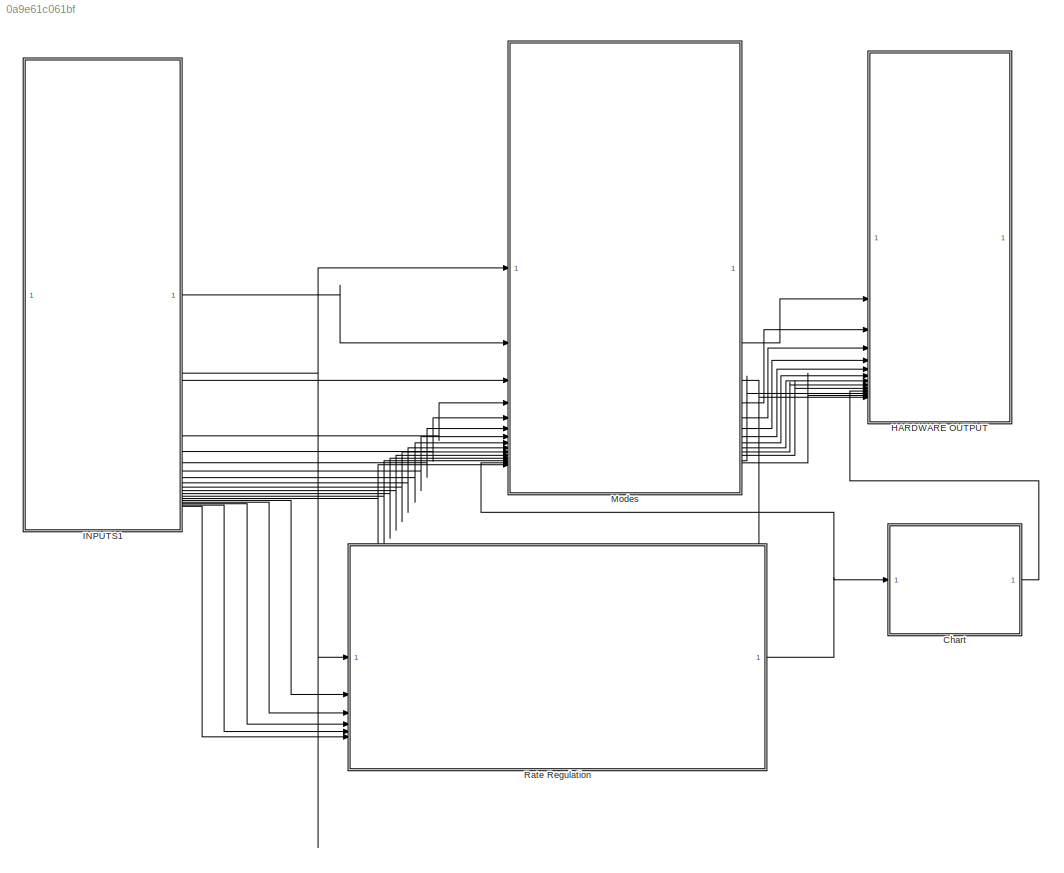
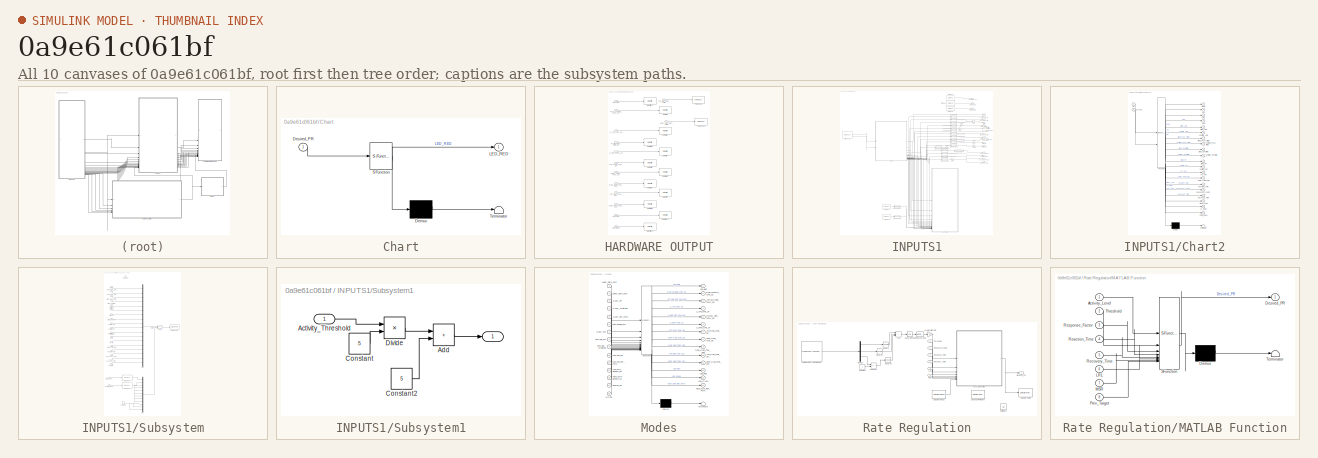
[diagram: thumbnail index - all 10 canvases of the model, root first then tree order]
MODEL slx_0a9e61c061bf
KIND model
CONFIG AbsTol = auto
CONFIG EnableMultiTasking = on
CONFIG FixedStep = 1e-3
CONFIG MaxStep = auto
CONFIG MinStep = auto
CONFIG RelTol = 1e-3
CONFIG SampleTimeConstraint = Unconstrained
CONFIG SolverName = FixedStepAuto
CONFIG StartTime = 0.0
CONFIG StopTime = 10.0
BLOCK [SubSystem] Chart
  ErrorFcn = Stateflow.Translate.translate
  PermitHierarchicalResolution = ExplicitOnly
  SFBlockType = Chart
  TreatAsAtomicUnit = on
BLOCK [Demux] Chart/ Demux 
  Outputs = 1
BLOCK [S-Function] Chart/ SFunction 
  EnableBusSupport = on
  FunctionName = sf_sfun
  PortCounts = [1 2]
  SFcnIsStateOwnerBlock = off
  SFunctionDeploymentMode = off
  Tag = Stateflow S-Function 3
BLOCK [Terminator] Chart/ Terminator 
BLOCK [Inport] Chart/Desired_PR
BLOCK [Outport] Chart/LED_RED
BLOCK [SubSystem] HARDWARE OUTPUT
BLOCK [Inport] HARDWARE OUTPUT/ATR_CMP_REF_PWM
  Port = 14
BLOCK [Inport] HARDWARE OUTPUT/ATR_GND_CTRL_D11
  Port = 9
BLOCK [Inport] HARDWARE OUTPUT/ATR_PACE_CTRL_D8
  Port = 6
BLOCK [Reference] HARDWARE OUTPUT/Digital Write  REF=frdmk64flib/Digital Write
  SourceBlock = frdmk64flib/Digital Write
  SourceType = freedomk64f.DigitalWrite
BLOCK [Reference] HARDWARE OUTPUT/Digital Write10  REF=frdmk64flib/Digital Write
  SourceBlock = frdmk64flib/Digital Write
  SourceType = freedomk64f.DigitalWrite
BLOCK [Reference] HARDWARE OUTPUT/Digital Write11  REF=frdmk64flib/Digital Write
  SourceBlock = frdmk64flib/Digital Write
  SourceType = freedomk64f.DigitalWrite
BLOCK [Reference] HARDWARE OUTPUT/Digital Write12  REF=frdmk64flib/Digital Write
  SourceBlock = frdmk64flib/Digital Write
  SourceType = freedomk64f.DigitalWrite
BLOCK [Reference] HARDWARE OUTPUT/Digital Write2  REF=frdmk64flib/Digital Write
  SourceBlock = frdmk64flib/Digital Write
  SourceType = freedomk64f.DigitalWrite
BLOCK [Reference] HARDWARE OUTPUT/Digital Write3  REF=frdmk64flib/Digital Write
  SourceBlock = frdmk64flib/Digital Write
  SourceType = freedomk64f.DigitalWrite
BLOCK [Reference] HARDWARE OUTPUT/Digital Write4  REF=frdmk64flib/Digital Write
  SourceBlock = frdmk64flib/Digital Write
  SourceType = freedomk64f.DigitalWrite
BLOCK [Reference] HARDWARE OUTPUT/Digital Write5  REF=frdmk64flib/Digital Write
  SourceBlock = frdmk64flib/Digital Write
  SourceType = freedomk64f.DigitalWrite
BLOCK [Reference] HARDWARE OUTPUT/Digital Write6  REF=frdmk64flib/Digital Write
  SourceBlock = frdmk64flib/Digital Write
  SourceType = freedomk64f.DigitalWrite
BLOCK [Reference] HARDWARE OUTPUT/Digital Write7  REF=frdmk64flib/Digital Write
  SourceBlock = frdmk64flib/Digital Write
  SourceType = freedomk64f.DigitalWrite
BLOCK [Reference] HARDWARE OUTPUT/Digital Write8  REF=frdmk64flib/Digital Write
  SourceBlock = frdmk64flib/Digital Write
  SourceType = freedomk64f.DigitalWrite
BLOCK [Reference] HARDWARE OUTPUT/Digital Write9  REF=frdmk64flib/Digital Write
  SourceBlock = frdmk64flib/Digital Write
  SourceType = freedomk64f.DigitalWrite
BLOCK [Inport] HARDWARE OUTPUT/LED_Blue
BLOCK [Inport] HARDWARE OUTPUT/LED_Green
  Port = 12
BLOCK [Inport] HARDWARE OUTPUT/LED_Red
  Port = 11
BLOCK [Inport] HARDWARE OUTPUT/PACE_CHARGE_CTRL_D2
  Port = 2
BLOCK [Inport] HARDWARE OUTPUT/PACE_GND_CTRL_D10
  Port = 8
BLOCK [Inport] HARDWARE OUTPUT/PACING_REF_PWM_D5
  Port = 4
BLOCK [Reference] HARDWARE OUTPUT/PWM Output1  REF=frdmk64flib/PWM Output
  SourceBlock = frdmk64flib/PWM Output
  SourceType = freedomk64f.PWMOutput
BLOCK [Reference] HARDWARE OUTPUT/PWM Output2  REF=frdmk64flib/PWM Output
  SourceBlock = frdmk64flib/PWM Output
  SourceType = freedomk64f.PWMOutput
BLOCK [Inport] HARDWARE OUTPUT/VENT_CMP_REF_PWM
  Port = 13
BLOCK [Inport] HARDWARE OUTPUT/VENT_GND_CTRL_D12
  Port = 10
BLOCK [Inport] HARDWARE OUTPUT/VENT_PACE_CTRL_D9
  Port = 7
BLOCK [Inport] HARDWARE OUTPUT/Z_ATR_CTRL_D4
  Port = 3
BLOCK [Inport] HARDWARE OUTPUT/Z_VENT_CTRL_D7
  Port = 5
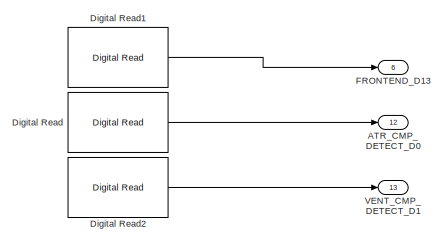
[diagram: INPUTS1 - part 1/4, top right region]
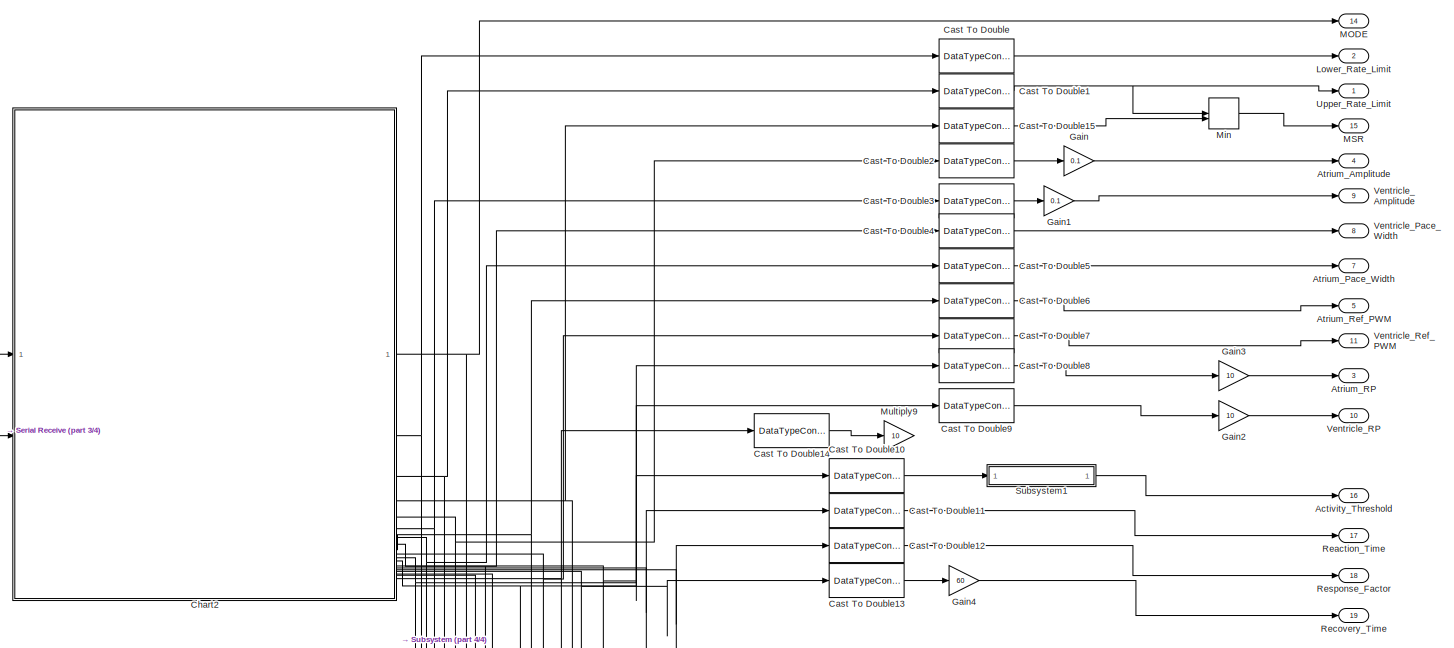
[diagram: INPUTS1 - part 2/4, full width, top band]
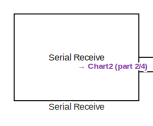
[diagram: INPUTS1 - part 3/4, top left region]
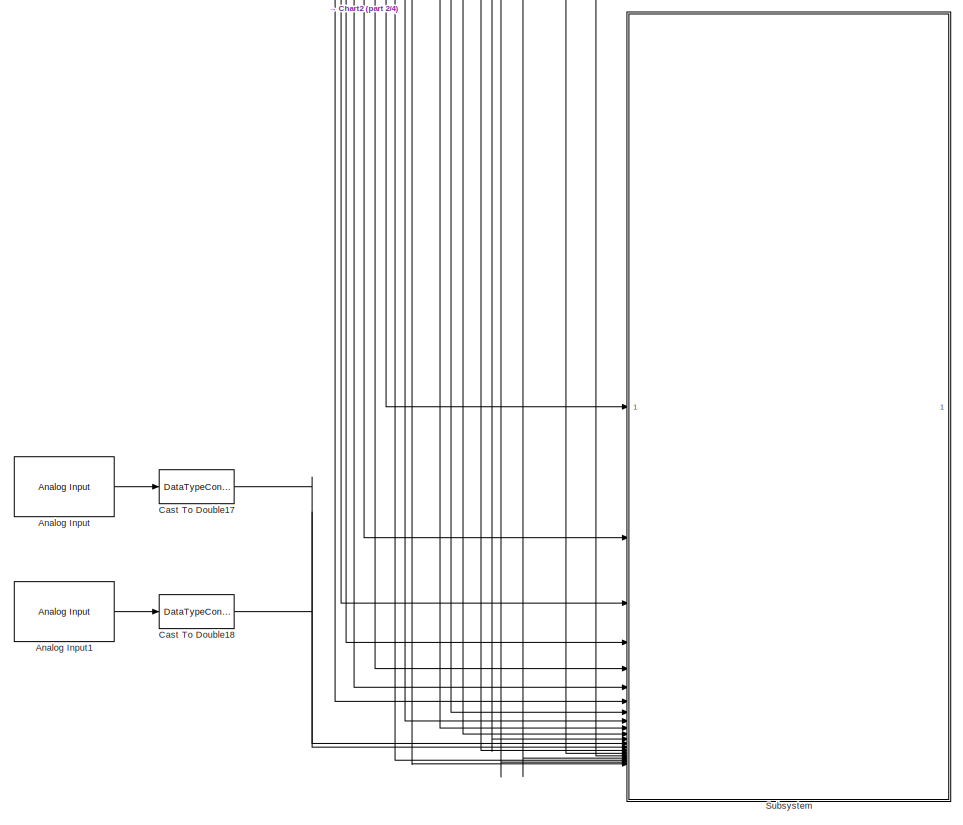
[diagram: INPUTS1 - part 4/4, bottom center region]
BLOCK [SubSystem] INPUTS1
BLOCK [Outport] INPUTS1/ MODE
  Port = 14
BLOCK [Outport] INPUTS1/ATR_CMP_DETECT_D0
  Port = 12
BLOCK [Outport] INPUTS1/Activity_Threshold
  Port = 16
BLOCK [Reference] INPUTS1/Analog Input  REF=frdmk64flib/Analog Input
  SourceBlock = frdmk64flib/Analog Input
  SourceType = freedomk64f.AnalogInput
BLOCK [Reference] INPUTS1/Analog Input1  REF=frdmk64flib/Analog Input
  SourceBlock = frdmk64flib/Analog Input
  SourceType = freedomk64f.AnalogInput
BLOCK [Outport] INPUTS1/Atrium_Amplitude
  Port = 4
BLOCK [Outport] INPUTS1/Atrium_Pace_Width
  Port = 7
BLOCK [Outport] INPUTS1/Atrium_RP
  Port = 3
BLOCK [Outport] INPUTS1/Atrium_Ref_PWM
  Port = 5
BLOCK [DataTypeConversion] INPUTS1/Cast To Double
  OutDataTypeStr = double
  RndMeth = Floor
  SaturateOnIntegerOverflow = off
BLOCK [DataTypeConversion] INPUTS1/Cast To Double1
  OutDataTypeStr = double
  RndMeth = Floor
  SaturateOnIntegerOverflow = off
BLOCK [DataTypeConversion] INPUTS1/Cast To Double10
  OutDataTypeStr = double
  RndMeth = Floor
  SaturateOnIntegerOverflow = off
BLOCK [DataTypeConversion] INPUTS1/Cast To Double11
  OutDataTypeStr = double
  RndMeth = Floor
  SaturateOnIntegerOverflow = off
BLOCK [DataTypeConversion] INPUTS1/Cast To Double12
  OutDataTypeStr = double
  RndMeth = Floor
  SaturateOnIntegerOverflow = off
BLOCK [DataTypeConversion] INPUTS1/Cast To Double13
  OutDataTypeStr = double
  RndMeth = Floor
  SaturateOnIntegerOverflow = off
BLOCK [DataTypeConversion] INPUTS1/Cast To Double14
  OutDataTypeStr = double
  RndMeth = Floor
  SaturateOnIntegerOverflow = off
BLOCK [DataTypeConversion] INPUTS1/Cast To Double15
  OutDataTypeStr = double
  RndMeth = Floor
  SaturateOnIntegerOverflow = off
BLOCK [DataTypeConversion] INPUTS1/Cast To Double17
  OutDataTypeStr = single
  RndMeth = Floor
  SaturateOnIntegerOverflow = off
BLOCK [DataTypeConversion] INPUTS1/Cast To Double18
  OutDataTypeStr = single
  RndMeth = Floor
  SaturateOnIntegerOverflow = off
BLOCK [DataTypeConversion] INPUTS1/Cast To Double2
  OutDataTypeStr = double
  RndMeth = Floor
  SaturateOnIntegerOverflow = off
BLOCK [DataTypeConversion] INPUTS1/Cast To Double3
  OutDataTypeStr = double
  RndMeth = Floor
  SaturateOnIntegerOverflow = off
BLOCK [DataTypeConversion] INPUTS1/Cast To Double4
  OutDataTypeStr = double
  RndMeth = Floor
  SaturateOnIntegerOverflow = off
BLOCK [DataTypeConversion] INPUTS1/Cast To Double5
  OutDataTypeStr = double
  RndMeth = Floor
  SaturateOnIntegerOverflow = off
BLOCK [DataTypeConversion] INPUTS1/Cast To Double6
  OutDataTypeStr = double
  RndMeth = Floor
  SaturateOnIntegerOverflow = off
BLOCK [DataTypeConversion] INPUTS1/Cast To Double7
  OutDataTypeStr = double
  RndMeth = Floor
  SaturateOnIntegerOverflow = off
BLOCK [DataTypeConversion] INPUTS1/Cast To Double8
  OutDataTypeStr = double
  RndMeth = Floor
  SaturateOnIntegerOverflow = off
BLOCK [DataTypeConversion] INPUTS1/Cast To Double9
  OutDataTypeStr = double
  RndMeth = Floor
  SaturateOnIntegerOverflow = off
BLOCK [SubSystem] INPUTS1/Chart2
  ErrorFcn = Stateflow.Translate.translate
  PermitHierarchicalResolution = ExplicitOnly
  PortSchema = {"entries":[{"content":{"sides":[{"content":{"connectorIds":["In1","In2"]},"type":"ConnectorPlacement.EquallySpacedRectSide","uuid":"ffb3d753-dbd9-4cc9-b3f6-be85e99fedf4"},{"content":{"connectorIds":["Out1","Out2","Out3","Out4","Out5","Out6","Out7","Out8","Out9","Out10","Out11","Out12","Out13","Out14","Out15","Out16","Out17","Out20","Out19","Out18"],"side":"RIGHT"},"type":"ConnectorPlacement.Equal...<+372ch>
  SFBlockType = Chart
  TreatAsAtomicUnit = on
BLOCK [Demux] INPUTS1/Chart2/ Demux 
  Outputs = 1
BLOCK [S-Function] INPUTS1/Chart2/ SFunction 
  EnableBusSupport = on
  FunctionName = sf_sfun
  PortCounts = [2 21]
  SFcnIsStateOwnerBlock = off
  SFunctionDeploymentMode = off
  Tag = Stateflow S-Function 4
BLOCK [Terminator] INPUTS1/Chart2/ Terminator 
BLOCK [Outport] INPUTS1/Chart2/AV_Delay
  Port = 19
BLOCK [Outport] INPUTS1/Chart2/Activity_Threshold
  Port = 14
BLOCK [Outport] INPUTS1/Chart2/Atrium_Amp
  Port = 5
BLOCK [Outport] INPUTS1/Chart2/Atrium_Pace_Width
  Port = 7
BLOCK [Outport] INPUTS1/Chart2/Atrium_RP
  Port = 11
BLOCK [Outport] INPUTS1/Chart2/Atrium_Sensitivity
  Port = 9
BLOCK [Outport] INPUTS1/Chart2/COM_SWAP
  Port = 20
BLOCK [Outport] INPUTS1/Chart2/Green_LED
  Port = 18
BLOCK [Outport] INPUTS1/Chart2/LRL
  Port = 2
BLOCK [Outport] INPUTS1/Chart2/MSR
  Port = 4
BLOCK [Outport] INPUTS1/Chart2/Mode
BLOCK [Outport] INPUTS1/Chart2/PV_ARP
  Port = 13
BLOCK [Inport] INPUTS1/Chart2/RX
BLOCK [Outport] INPUTS1/Chart2/Reaction_Time
  Port = 15
BLOCK [Outport] INPUTS1/Chart2/Recovery_Time
  Port = 17
BLOCK [Outport] INPUTS1/Chart2/Response_Factor
  Port = 16
BLOCK [Inport] INPUTS1/Chart2/STATUS
  Port = 2
BLOCK [Outport] INPUTS1/Chart2/URL
  Port = 3
BLOCK [Outport] INPUTS1/Chart2/Ventricle_Amp
  Port = 6
BLOCK [Outport] INPUTS1/Chart2/Ventricle_Pace_Width
  Port = 8
BLOCK [Outport] INPUTS1/Chart2/Ventricle_RP
  Port = 12
BLOCK [Outport] INPUTS1/Chart2/Ventricle_Sensitivity
  Port = 10
BLOCK [Reference] INPUTS1/Digital Read  REF=frdmk64flib/Digital Read
  SourceBlock = frdmk64flib/Digital Read
  SourceType = freedomk64f.DigitalRead
BLOCK [Reference] INPUTS1/Digital Read1  REF=frdmk64flib/Digital Read
  SourceBlock = frdmk64flib/Digital Read
  SourceType = freedomk64f.DigitalRead
BLOCK [Reference] INPUTS1/Digital Read2  REF=frdmk64flib/Digital Read
  SourceBlock = frdmk64flib/Digital Read
  SourceType = freedomk64f.DigitalRead
BLOCK [Outport] INPUTS1/FRONTEND_D13
  Port = 6
BLOCK [Gain] INPUTS1/Gain
  Gain = 0.1
BLOCK [Gain] INPUTS1/Gain1
  Gain = 0.1
BLOCK [Gain] INPUTS1/Gain2
  Gain = 10
BLOCK [Gain] INPUTS1/Gain3
  Gain = 10
BLOCK [Gain] INPUTS1/Gain4
  Gain = 60
BLOCK [Outport] INPUTS1/Lower_Rate_Limit
  Port = 2
BLOCK [Outport] INPUTS1/MSR
  Port = 15
BLOCK [MinMax] INPUTS1/Min
  Inputs = 2
BLOCK [Gain] INPUTS1/Multiply9
  Gain = 10
BLOCK [Outport] INPUTS1/Reaction_Time
  Port = 17
BLOCK [Outport] INPUTS1/Recovery_Time
  Port = 19
BLOCK [Outport] INPUTS1/Response_Factor
  Port = 18
BLOCK [Reference] INPUTS1/Serial Receive  REF=frdmk64flib/Serial Receive
  SourceBlock = frdmk64flib/Serial Receive
  SourceType = freedomk64f.SCIRead
BLOCK [SubSystem] INPUTS1/Subsystem
BLOCK [Inport] INPUTS1/Subsystem/AV_Delay
  Port = 21
BLOCK [Inport] INPUTS1/Subsystem/Activity_Threshold
  Port = 18
BLOCK [Inport] INPUTS1/Subsystem/Atrium_Amplitude
  Port = 5
BLOCK [Inport] INPUTS1/Subsystem/Atrium_Pace_Width
  Port = 4
BLOCK [Inport] INPUTS1/Subsystem/Atrium_RP
  Port = 7
BLOCK [Inport] INPUTS1/Subsystem/Atrium_Ref_PWM
  Port = 8
BLOCK [Inport] INPUTS1/Subsystem/Atrium_Signal
  Port = 13
BLOCK [Reference] INPUTS1/Subsystem/Byte Pack  REF=etargetslib/Byte Pack
  LibrarySourceBlock = embeddedtargetslib/Host Communication/Byte Pack
  SourceBlock = etargetslib/Byte Pack
  SourceType = Byte pack
BLOCK [Reference] INPUTS1/Subsystem/Byte Pack1  REF=etargetslib/Byte Pack
  LibrarySourceBlock = embeddedtargetslib/Host Communication/Byte Pack
  SourceBlock = etargetslib/Byte Pack
  SourceType = Byte pack
BLOCK [Inport] INPUTS1/Subsystem/COM
  Port = 19
BLOCK [Constant] INPUTS1/Subsystem/Constant
  OutDataTypeStr = uint8
  Value = 0
BLOCK [TriggerPort] INPUTS1/Subsystem/DCM_out
  FunctionName = DCM_out
  IsSimulinkFunction = on
  StatesWhenEnabling = held
  TriggerType = function-call
  VariantControl = (inherit)
BLOCK [Inport] INPUTS1/Subsystem/Lower_Rate_Limit
  Port = 3
BLOCK [Inport] INPUTS1/Subsystem/MSR
  Port = 12
BLOCK [Inport] INPUTS1/Subsystem/Mode
BLOCK [Mux] INPUTS1/Subsystem/Mux
  DisplayOption = bar
  Inputs = 18
  NameLocation = left
BLOCK [Mux] INPUTS1/Subsystem/Mux1
  DisplayOption = bar
  Inputs = 12
BLOCK [Inport] INPUTS1/Subsystem/PVARP
  Port = 15
BLOCK [Inport] INPUTS1/Subsystem/Reaction_Time
  Port = 16
BLOCK [Inport] INPUTS1/Subsystem/Recovery_Time
  Port = 20
BLOCK [Inport] INPUTS1/Subsystem/Response_Factor
  Port = 17
BLOCK [Reference] INPUTS1/Subsystem/Serial Transmit  REF=frdmk64flib/Serial Transmit
  SourceBlock = frdmk64flib/Serial Transmit
  SourceType = freedomk64f.SCIWrite
BLOCK [Switch] INPUTS1/Subsystem/Switch
  Criteria = u2 ~= 0
  InputSameDT = off
  SaturateOnIntegerOverflow = off
BLOCK [Inport] INPUTS1/Subsystem/Upper_Rate_Limit
  Port = 2
BLOCK [Inport] INPUTS1/Subsystem/Ventricle_Amplitude
  Port = 6
BLOCK [Inport] INPUTS1/Subsystem/Ventricle_PW
  Port = 9
BLOCK [Inport] INPUTS1/Subsystem/Ventricle_RP
  Port = 10
BLOCK [Inport] INPUTS1/Subsystem/Ventricle_Ref_PWM
  Port = 11
BLOCK [Inport] INPUTS1/Subsystem/Ventricle_Signal
  Port = 14
BLOCK [SubSystem] INPUTS1/Subsystem1
BLOCK [Outport] INPUTS1/Subsystem1/ 
BLOCK [Inport] INPUTS1/Subsystem1/Activity_Threshold
BLOCK [Sum] INPUTS1/Subsystem1/Add
  IconShape = rectangular
BLOCK [Constant] INPUTS1/Subsystem1/Constant
  Value = 5
BLOCK [Constant] INPUTS1/Subsystem1/Constant2
  Value = 5
BLOCK [Product] INPUTS1/Subsystem1/Divide
  Inputs = **
BLOCK [Outport] INPUTS1/Upper_Rate_Limit
BLOCK [Outport] INPUTS1/VENT_CMP_DETECT_D1
  Port = 13
BLOCK [Outport] INPUTS1/Ventricle_Amplitude
  Port = 9
BLOCK [Outport] INPUTS1/Ventricle_Pace_Width
  Port = 8
BLOCK [Outport] INPUTS1/Ventricle_RP
  Port = 10
BLOCK [Outport] INPUTS1/Ventricle_Ref_PWM
  Port = 11
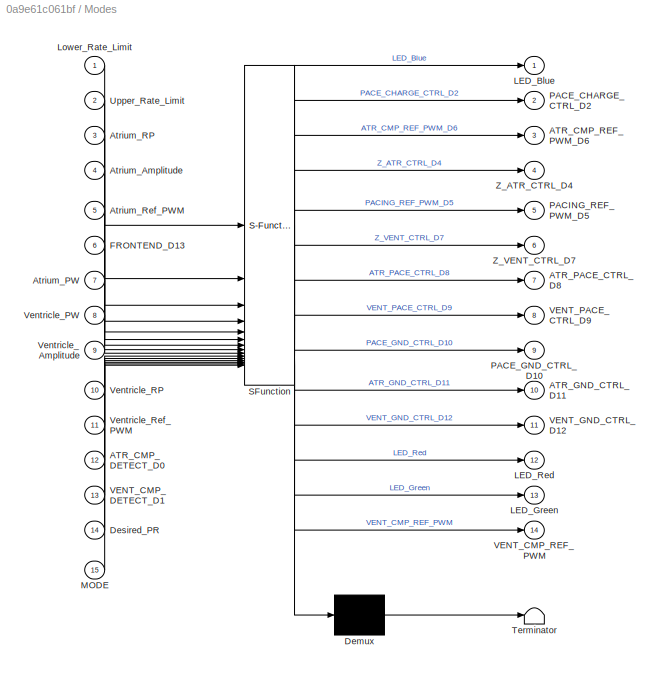
BLOCK [SubSystem] Modes
  ErrorFcn = Stateflow.Translate.translate
  PermitHierarchicalResolution = ExplicitOnly
  PortSchema = {"entries":[{"content":{"sides":[{"content":{"connectorIds":["In2","In1","In3","In4","In5","In6","In7","In8","In9","In10","In11","In12","In13","In15","In14"]},"type":"ConnectorPlacement.EquallySpacedRectSide","uuid":"de1b8d47-cd87-47e9-9fda-ef3b527fe860"},{"content":{"connectorIds":["Out1","Out2","Out3","Out4","Out5","Out6","Out7","Out8","Out9","Out10","Out11","Out12","Out13","Out14"],"side":"RIGH...<+408ch>
  SFBlockType = Chart
  TreatAsAtomicUnit = on
BLOCK [Demux] Modes/ Demux 
  Outputs = 1
BLOCK [S-Function] Modes/ SFunction 
  EnableBusSupport = on
  FunctionName = sf_sfun
  PortCounts = [15 15]
  SFcnIsStateOwnerBlock = off
  SFunctionDeploymentMode = off
  Tag = Stateflow S-Function 2
BLOCK [Terminator] Modes/ Terminator 
BLOCK [Inport] Modes/ATR_CMP_DETECT_D0
  Port = 12
BLOCK [Outport] Modes/ATR_CMP_REF_PWM_D6
  Port = 3
BLOCK [Outport] Modes/ATR_GND_CTRL_D11
  Port = 10
BLOCK [Outport] Modes/ATR_PACE_CTRL_D8
  Port = 7
BLOCK [Inport] Modes/Atrium_Amplitude
  Port = 4
BLOCK [Inport] Modes/Atrium_PW
  Port = 7
BLOCK [Inport] Modes/Atrium_RP
  Port = 3
BLOCK [Inport] Modes/Atrium_Ref_PWM
  Port = 5
BLOCK [Inport] Modes/Desired_PR
  Port = 14
BLOCK [Inport] Modes/FRONTEND_D13
  Port = 6
BLOCK [Outport] Modes/LED_Blue
BLOCK [Outport] Modes/LED_Green
  Port = 13
BLOCK [Outport] Modes/LED_Red
  Port = 12
BLOCK [Inport] Modes/Lower_Rate_Limit
BLOCK [Inport] Modes/MODE
  Port = 15
BLOCK [Outport] Modes/PACE_CHARGE_CTRL_D2
  Port = 2
BLOCK [Outport] Modes/PACE_GND_CTRL_D10
  Port = 9
BLOCK [Outport] Modes/PACING_REF_PWM_D5
  Port = 5
BLOCK [Inport] Modes/Upper_Rate_Limit
  Port = 2
BLOCK [Inport] Modes/VENT_CMP_DETECT_D1
  Port = 13
BLOCK [Outport] Modes/VENT_CMP_REF_PWM
  Port = 14
BLOCK [Outport] Modes/VENT_GND_CTRL_D12
  Port = 11
BLOCK [Outport] Modes/VENT_PACE_CTRL_D9
  Port = 8
BLOCK [Inport] Modes/Ventricle_Amplitude
  Port = 9
BLOCK [Inport] Modes/Ventricle_PW
  Port = 8
BLOCK [Inport] Modes/Ventricle_RP
  Port = 10
BLOCK [Inport] Modes/Ventricle_Ref_PWM
  Port = 11
BLOCK [Outport] Modes/Z_ATR_CTRL_D4
  Port = 4
BLOCK [Outport] Modes/Z_VENT_CTRL_D7
  Port = 6
BLOCK [SubSystem] Rate Regulation
BLOCK [Gain] Rate Regulation/Acceleration Amp
  Gain = 25
BLOCK [Sum] Rate Regulation/Add
  IconShape = rectangular
  Inputs = +++
BLOCK [Constant] Rate Regulation/Constant
BLOCK [DataStoreRead] Rate Regulation/Data Store Read
  DataStoreElements = Prev_Target
  DataStoreName = Prev_Target
  IndexOptions = Index vector (dialog)
  Indices = 1
  OutputSizes = 1
BLOCK [DataStoreWrite] Rate Regulation/Data Store Write
  DataStoreElements = Prev_Target
  DataStoreName = Prev_Target
  IndexOptions = Index vector (dialog)
  Indices = 1
  OutputSizes = 1
BLOCK [Demux] Rate Regulation/Demux
  Outputs = 3
BLOCK [DataStoreMemory] Rate Regulation/Desired PR Memory
  DataStoreName = Prev_Target
  ShowAdditionalParam = off
  WriteAfterWriteMsg = warning
BLOCK [Outport] Rate Regulation/Desired_PR
  OutDataTypeStr = double
BLOCK [Reference] Rate Regulation/FXOS8700 6-Axes Sensor  REF=frdmk64flib/FXOS8700 6-Axes Sensor
  SourceBlock = frdmk64flib/FXOS8700 6-Axes Sensor
  SourceType = freedomk64f.fxos8700
BLOCK [Inport] Rate Regulation/LRL
  OutDataTypeStr = double
BLOCK [SubSystem] Rate Regulation/MATLAB Function
  ErrorFcn = Stateflow.Translate.translate
  PermitHierarchicalResolution = ExplicitOnly
  SFBlockType = MATLAB Function
  TreatAsAtomicUnit = on
BLOCK [Demux] Rate Regulation/MATLAB Function/ Demux 
  Outputs = 1
BLOCK [S-Function] Rate Regulation/MATLAB Function/ SFunction 
  EnableBusSupport = on
  FunctionName = sf_sfun
  PortCounts = [8 2]
  SFcnIsStateOwnerBlock = off
  SFunctionDeploymentMode = off
  Tag = Stateflow S-Function 1
BLOCK [Terminator] Rate Regulation/MATLAB Function/ Terminator 
BLOCK [Inport] Rate Regulation/MATLAB Function/Activity_Level
BLOCK [Outport] Rate Regulation/MATLAB Function/Desired_PR
BLOCK [Inport] Rate Regulation/MATLAB Function/LRL
  Port = 6
BLOCK [Inport] Rate Regulation/MATLAB Function/MSR
  Port = 7
BLOCK [Inport] Rate Regulation/MATLAB Function/Prev_Target
  Port = 8
BLOCK [Inport] Rate Regulation/MATLAB Function/Reaction_Time
  Port = 4
BLOCK [Inport] Rate Regulation/MATLAB Function/Recovery_Time
  Port = 5
BLOCK [Inport] Rate Regulation/MATLAB Function/Response_Factor
  Port = 3
BLOCK [Inport] Rate Regulation/MATLAB Function/Threshold
  Port = 2
BLOCK [Inport] Rate Regulation/MSR
  OutDataTypeStr = double
  Port = 2
BLOCK [Reference] Rate Regulation/Moving Average  REF=dspstat3/Moving
Average
  SourceBlock = dspstat3/Moving\nAverage
  SourceType = dsp.simulink.MovingAverage
BLOCK [Inport] Rate Regulation/Recovery_Time
  OutDataTypeStr = double
  Port = 6
BLOCK [Inport] Rate Regulation/Response_Factor
  OutDataTypeStr = double
  Port = 5
BLOCK [Inport] Rate Regulation/Response_Time
  OutDataTypeStr = double
  Port = 4
BLOCK [Math] Rate Regulation/Square
  Operator = square
BLOCK [Sqrt] Rate Regulation/Square Root
BLOCK [Math] Rate Regulation/Square1
  Operator = square
BLOCK [Math] Rate Regulation/Square2
  Operator = square
BLOCK [Sum] Rate Regulation/Subtract1
  IconShape = rectangular
  Inputs = +-
BLOCK [Inport] Rate Regulation/Threshold
  OutDataTypeStr = double
  Port = 3
BLOCK [UnitDelay] Rate Regulation/Unit Delay1
  HasFrameUpgradeWarning = on
  NameLocation = right
  SampleTime = -1
LINE Chart:1 -> HARDWARE OUTPUT:11
LINE HARDWARE OUTPUT/ATR_CMP_REF_PWM:1 -> HARDWARE OUTPUT/PWM Output2:1
LINE HARDWARE OUTPUT/ATR_GND_CTRL_D11:1 -> HARDWARE OUTPUT/Digital Write8:1
LINE HARDWARE OUTPUT/ATR_PACE_CTRL_D8:1 -> HARDWARE OUTPUT/Digital Write5:1
LINE HARDWARE OUTPUT/LED_Blue:1 -> HARDWARE OUTPUT/Digital Write10:1
LINE HARDWARE OUTPUT/LED_Green:1 -> HARDWARE OUTPUT/Digital Write12:1
LINE HARDWARE OUTPUT/LED_Red:1 -> HARDWARE OUTPUT/Digital Write11:1
LINE HARDWARE OUTPUT/PACE_CHARGE_CTRL_D2:1 -> HARDWARE OUTPUT/Digital Write:1
LINE HARDWARE OUTPUT/PACE_GND_CTRL_D10:1 -> HARDWARE OUTPUT/Digital Write7:1
LINE HARDWARE OUTPUT/PACING_REF_PWM_D5:1 -> HARDWARE OUTPUT/Digital Write3:1
LINE HARDWARE OUTPUT/VENT_CMP_REF_PWM:1 -> HARDWARE OUTPUT/PWM Output1:1
LINE HARDWARE OUTPUT/VENT_GND_CTRL_D12:1 -> HARDWARE OUTPUT/Digital Write9:1
LINE HARDWARE OUTPUT/VENT_PACE_CTRL_D9:1 -> HARDWARE OUTPUT/Digital Write6:1
LINE HARDWARE OUTPUT/Z_ATR_CTRL_D4:1 -> HARDWARE OUTPUT/Digital Write2:1
LINE HARDWARE OUTPUT/Z_VENT_CTRL_D7:1 -> HARDWARE OUTPUT/Digital Write4:1
LINE INPUTS1/Analog Input1:1 -> INPUTS1/Cast To Double18:1
LINE INPUTS1/Analog Input:1 -> INPUTS1/Cast To Double17:1
LINE INPUTS1/Cast To Double10:1 -> INPUTS1/Subsystem1:1
LINE INPUTS1/Cast To Double11:1 -> INPUTS1/Reaction_Time:1
LINE INPUTS1/Cast To Double12:1 -> INPUTS1/Response_Factor:1
LINE INPUTS1/Cast To Double13:1 -> INPUTS1/Gain4:1
LINE INPUTS1/Cast To Double14:1 -> INPUTS1/Multiply9:1
LINE INPUTS1/Cast To Double15:1 -> INPUTS1/Min:2
LINE INPUTS1/Cast To Double17:1 -> INPUTS1/Subsystem:13
LINE INPUTS1/Cast To Double18:1 -> INPUTS1/Subsystem:14
NET INPUTS1/Cast To Double1:1 -> INPUTS1/Min:1, INPUTS1/Upper_Rate_Limit:1
LINE INPUTS1/Cast To Double2:1 -> INPUTS1/Gain:1
LINE INPUTS1/Cast To Double3:1 -> INPUTS1/Gain1:1
LINE INPUTS1/Cast To Double4:1 -> INPUTS1/Ventricle_Pace_Width:1
LINE INPUTS1/Cast To Double5:1 -> INPUTS1/Atrium_Pace_Width:1
LINE INPUTS1/Cast To Double6:1 -> INPUTS1/Atrium_Ref_PWM:1
LINE INPUTS1/Cast To Double7:1 -> INPUTS1/Ventricle_Ref_PWM:1
LINE INPUTS1/Cast To Double8:1 -> INPUTS1/Gain3:1
LINE INPUTS1/Cast To Double9:1 -> INPUTS1/Gain2:1
LINE INPUTS1/Cast To Double:1 -> INPUTS1/Lower_Rate_Limit:1
NET INPUTS1/Chart2:1 -> INPUTS1/ MODE:1, INPUTS1/Subsystem:1
NET INPUTS1/Chart2:10 -> INPUTS1/Cast To Double7:1, INPUTS1/Subsystem:11
NET INPUTS1/Chart2:11 -> INPUTS1/Cast To Double8:1, INPUTS1/Subsystem:7
NET INPUTS1/Chart2:12 -> INPUTS1/Cast To Double9:1, INPUTS1/Subsystem:10
NET INPUTS1/Chart2:13 -> INPUTS1/Cast To Double14:1, INPUTS1/Subsystem:15
NET INPUTS1/Chart2:14 -> INPUTS1/Cast To Double10:1, INPUTS1/Subsystem:18
NET INPUTS1/Chart2:15 -> INPUTS1/Cast To Double11:1, INPUTS1/Subsystem:16
NET INPUTS1/Chart2:16 -> INPUTS1/Cast To Double12:1, INPUTS1/Subsystem:17
NET INPUTS1/Chart2:17 -> INPUTS1/Cast To Double13:1, INPUTS1/Subsystem:20
LINE INPUTS1/Chart2:19 -> INPUTS1/Subsystem:21
NET INPUTS1/Chart2:2 -> INPUTS1/Cast To Double:1, INPUTS1/Subsystem:3
LINE INPUTS1/Chart2:20 -> INPUTS1/Subsystem:19
NET INPUTS1/Chart2:3 -> INPUTS1/Cast To Double1:1, INPUTS1/Subsystem:2
NET INPUTS1/Chart2:4 -> INPUTS1/Cast To Double15:1, INPUTS1/Subsystem:12
NET INPUTS1/Chart2:5 -> INPUTS1/Cast To Double2:1, INPUTS1/Subsystem:5
NET INPUTS1/Chart2:6 -> INPUTS1/Cast To Double3:1, INPUTS1/Subsystem:6
NET INPUTS1/Chart2:7 -> INPUTS1/Cast To Double5:1, INPUTS1/Subsystem:4
NET INPUTS1/Chart2:8 -> INPUTS1/Cast To Double4:1, INPUTS1/Subsystem:9
NET INPUTS1/Chart2:9 -> INPUTS1/Cast To Double6:1, INPUTS1/Subsystem:8
LINE INPUTS1/Digital Read1:1 -> INPUTS1/FRONTEND_D13:1
LINE INPUTS1/Digital Read2:1 -> INPUTS1/VENT_CMP_DETECT_D1:1
LINE INPUTS1/Digital Read:1 -> INPUTS1/ATR_CMP_DETECT_D0:1
LINE INPUTS1/Gain1:1 -> INPUTS1/Ventricle_Amplitude:1
LINE INPUTS1/Gain2:1 -> INPUTS1/Ventricle_RP:1
LINE INPUTS1/Gain3:1 -> INPUTS1/Atrium_RP:1
LINE INPUTS1/Gain4:1 -> INPUTS1/Recovery_Time:1
LINE INPUTS1/Gain:1 -> INPUTS1/Atrium_Amplitude:1
LINE INPUTS1/Min:1 -> INPUTS1/MSR:1
LINE INPUTS1/Serial Receive:1 -> INPUTS1/Chart2:1
LINE INPUTS1/Serial Receive:2 -> INPUTS1/Chart2:2
LINE INPUTS1/Subsystem/AV_Delay:1 -> INPUTS1/Subsystem/Mux:18
LINE INPUTS1/Subsystem/Activity_Threshold:1 -> INPUTS1/Subsystem/Mux:14
LINE INPUTS1/Subsystem/Atrium_Amplitude:1 -> INPUTS1/Subsystem/Mux:5
LINE INPUTS1/Subsystem/Atrium_Pace_Width:1 -> INPUTS1/Subsystem/Mux:4
LINE INPUTS1/Subsystem/Atrium_RP:1 -> INPUTS1/Subsystem/Mux:7
LINE INPUTS1/Subsystem/Atrium_Ref_PWM:1 -> INPUTS1/Subsystem/Mux:8
LINE INPUTS1/Subsystem/Atrium_Signal:1 -> INPUTS1/Subsystem/Byte Pack:1
LINE INPUTS1/Subsystem/Byte Pack1:1 -> INPUTS1/Subsystem/Mux1:2
LINE INPUTS1/Subsystem/Byte Pack:1 -> INPUTS1/Subsystem/Mux1:1
LINE INPUTS1/Subsystem/COM:1 -> INPUTS1/Subsystem/Switch:2
NET INPUTS1/Subsystem/Constant:1 -> INPUTS1/Subsystem/Mux1:10, INPUTS1/Subsystem/Mux1:11, INPUTS1/Subsystem/Mux1:12, INPUTS1/Subsystem/Mux1:3, INPUTS1/Subsystem/Mux1:4, INPUTS1/Subsystem/Mux1:5, INPUTS1/Subsystem/Mux1:6, INPUTS1/Subsystem/Mux1:7, INPUTS1/Subsystem/Mux1:8, INPUTS1/Subsystem/Mux1:9
LINE INPUTS1/Subsystem/Lower_Rate_Limit:1 -> INPUTS1/Subsystem/Mux:3
LINE INPUTS1/Subsystem/MSR:1 -> INPUTS1/Subsystem/Mux:12
LINE INPUTS1/Subsystem/Mode:1 -> INPUTS1/Subsystem/Mux:1
LINE INPUTS1/Subsystem/Mux1:1 -> INPUTS1/Subsystem/Switch:3
LINE INPUTS1/Subsystem/Mux:1 -> INPUTS1/Subsystem/Switch:1
LINE INPUTS1/Subsystem/PVARP:1 -> INPUTS1/Subsystem/Mux:13
LINE INPUTS1/Subsystem/Reaction_Time:1 -> INPUTS1/Subsystem/Mux:15
LINE INPUTS1/Subsystem/Recovery_Time:1 -> INPUTS1/Subsystem/Mux:17
LINE INPUTS1/Subsystem/Response_Factor:1 -> INPUTS1/Subsystem/Mux:16
LINE INPUTS1/Subsystem/Switch:1 -> INPUTS1/Subsystem/Serial Transmit:1
LINE INPUTS1/Subsystem/Upper_Rate_Limit:1 -> INPUTS1/Subsystem/Mux:2
LINE INPUTS1/Subsystem/Ventricle_Amplitude:1 -> INPUTS1/Subsystem/Mux:6
LINE INPUTS1/Subsystem/Ventricle_PW:1 -> INPUTS1/Subsystem/Mux:9
LINE INPUTS1/Subsystem/Ventricle_RP:1 -> INPUTS1/Subsystem/Mux:10
LINE INPUTS1/Subsystem/Ventricle_Ref_PWM:1 -> INPUTS1/Subsystem/Mux:11
LINE INPUTS1/Subsystem/Ventricle_Signal:1 -> INPUTS1/Subsystem/Byte Pack1:1
LINE INPUTS1/Subsystem1/Activity_Threshold:1 -> INPUTS1/Subsystem1/Divide:1
LINE INPUTS1/Subsystem1/Add:1 -> INPUTS1/Subsystem1/ :1
LINE INPUTS1/Subsystem1/Constant2:1 -> INPUTS1/Subsystem1/Add:2
LINE INPUTS1/Subsystem1/Constant:1 -> INPUTS1/Subsystem1/Divide:2
LINE INPUTS1/Subsystem1/Divide:1 -> INPUTS1/Subsystem1/Add:1
LINE INPUTS1/Subsystem1:1 -> INPUTS1/Activity_Threshold:1
LINE INPUTS1:1 -> Modes:2
LINE INPUTS1:10 -> Modes:10
LINE INPUTS1:11 -> Modes:11
LINE INPUTS1:12 -> Modes:12
LINE INPUTS1:13 -> Modes:13
LINE INPUTS1:14 -> Modes:15
LINE INPUTS1:15 -> Rate Regulation:2
LINE INPUTS1:16 -> Rate Regulation:3
LINE INPUTS1:17 -> Rate Regulation:4
LINE INPUTS1:18 -> Rate Regulation:5
LINE INPUTS1:19 -> Rate Regulation:6
NET INPUTS1:2 -> Modes:1, Rate Regulation:1
LINE INPUTS1:3 -> Modes:3
LINE INPUTS1:4 -> Modes:4
LINE INPUTS1:5 -> Modes:5
LINE INPUTS1:6 -> Modes:6
LINE INPUTS1:7 -> Modes:7
LINE INPUTS1:8 -> Modes:8
LINE INPUTS1:9 -> Modes:9
LINE Modes:10 -> HARDWARE OUTPUT:9
LINE Modes:11 -> HARDWARE OUTPUT:10
LINE Modes:13 -> HARDWARE OUTPUT:12
LINE Modes:14 -> HARDWARE OUTPUT:13
LINE Modes:2 -> HARDWARE OUTPUT:2
LINE Modes:3 -> HARDWARE OUTPUT:14
LINE Modes:4 -> HARDWARE OUTPUT:3
LINE Modes:5 -> HARDWARE OUTPUT:4
LINE Modes:6 -> HARDWARE OUTPUT:5
LINE Modes:7 -> HARDWARE OUTPUT:6
LINE Modes:8 -> HARDWARE OUTPUT:7
LINE Modes:9 -> HARDWARE OUTPUT:8
LINE Rate Regulation/Acceleration Amp:1 -> Rate Regulation/MATLAB Function:1
LINE Rate Regulation/Add:1 -> Rate Regulation/Square Root:1
LINE Rate Regulation/Constant:1 -> Rate Regulation/Subtract1:2
LINE Rate Regulation/Data Store Read:1 -> Rate Regulation/MATLAB Function:8
LINE Rate Regulation/Demux:1 -> Rate Regulation/Square:1
LINE Rate Regulation/Demux:2 -> Rate Regulation/Square1:1
LINE Rate Regulation/Demux:3 -> Rate Regulation/Subtract1:1
LINE Rate Regulation/FXOS8700 6-Axes Sensor:1 -> Rate Regulation/Demux:1
LINE Rate Regulation/LRL:1 -> Rate Regulation/MATLAB Function:6
NET Rate Regulation/MATLAB Function:1 -> Rate Regulation/Data Store Write:1, Rate Regulation/Desired_PR:1
LINE Rate Regulation/MSR:1 -> Rate Regulation/MATLAB Function:7
LINE Rate Regulation/Moving Average:1 -> Rate Regulation/Acceleration Amp:1
LINE Rate Regulation/Recovery_Time:1 -> Rate Regulation/MATLAB Function:5
LINE Rate Regulation/Response_Factor:1 -> Rate Regulation/MATLAB Function:3
LINE Rate Regulation/Response_Time:1 -> Rate Regulation/MATLAB Function:4
LINE Rate Regulation/Square Root:1 -> Rate Regulation/Moving Average:1
LINE Rate Regulation/Square1:1 -> Rate Regulation/Add:2
LINE Rate Regulation/Square2:1 -> Rate Regulation/Add:3
LINE Rate Regulation/Square:1 -> Rate Regulation/Add:1
LINE Rate Regulation/Subtract1:1 -> Rate Regulation/Square2:1
LINE Rate Regulation/Threshold:1 -> Rate Regulation/MATLAB Function:2
NET Rate Regulation:1 -> Chart:1, Modes:14
note: NET lines group one-source signal fan-out (src -> all destinations, sorted); 1:1 wires keep LINE
CHART Rate Regulation/MATLAB Function states=1 transitions=1
  STATE_LABEL 'eML_blk_kernel()'
  STATE_LABEL 'SCRIPT:\nfunction Desired_PR  = rate_adaptive(Activity_Level, Threshold, Response_Factor, Reaction_Time, Recovery_Time, LRL, MSR, Prev_Target)\n\n% Rate adaptive starts when the activity level if greater than the threshold\n\nGain = 10; \n\nActivity_Derivative = diff(Activity_Level);\n\nActivity_Difference = Activity_Level - Threshold;\n\n% To prevent over penalizing very low activity levels\nif (Activity_Dif...<+575ch>'
CHART Modes states=30 transitions=50
  STATE_LABEL 'AAI'
  STATE_LABEL 'Refractory\nentry:\nPACING_REF_PWM_D5 = 100*(Atrium_Amplitude/5)\nPACE_CHARGE_CTRL_D2=1;\nPACE_GND_CTRL_D10=1;\nVENT_PACE_CTRL_D9=0;\nZ_ATR_CTRL_D4=0;\nZ_VENT_CTRL_D7=0;\nATR_PACE_CTRL_D8=0;\nATR_GND_CTRL_D11=1;\nVENT_GND_CTRL_D12=0;\nATR_CMP_REF_PWM_D6= Atrium_Ref_PWM;\n%Visual Signal\nLED_Blue=0;\nPeriod=30000/(Lower_Rate_Limit)\n'
  STATE_LABEL 'Pace\nentry:\nPACING_REF_PWM_D5=0\nPACE_CHARGE_CTRL_D2=0;\nPACE_GND_CTRL_D10=1;\nATR_PACE_CTRL_D8=1;\nATR_GND_CTRL_D11=0;\nZ_ATR_CTRL_D4=0;\nZ_VENT_CTRL_D7=0;\nVENT_GND_CTRL_D12=0;\nVENT_PACE_CTRL_D9=0;\n%Visual Signal\nLED_Blue=1;\nLED_Green = 0;'  <repeated x4 — deduplicated; at blocks: Modes>
  STATE_LABEL 'Sense\nentry:\nLED_Green = 1;\n'
  STATE_LABEL '[after(Atrium_PW,msec)]'
  STATE_LABEL '[after(Atrium_RP,msec)]'
  STATE_LABEL '[after(Period-Atrium_RP-Atrium_PW,msec)]'
  STATE_LABEL '[ATR_CMP_DETECT_D0 == 1]'
  STATE_LABEL 'Refractory\nentry:\nPACING_REF_PWM_D5 = 100*(Atrium_Amplitude/5)\nPACE_CHARGE_CTRL_D2=1;\nPACE_GND_CTRL_D10=1;\nVENT_PACE_CTRL_D9=0;\nZ_ATR_CTRL_D4=0;\nZ_VENT_CTRL_D7=0;\nATR_PACE_CTRL_D8=0;\nATR_GND_CTRL_D11=1;\nVENT_GND_CTRL_D12=0;\nATR_CMP_REF_PWM_D6= Atrium_Ref_PWM;\n%Visual Signal\nLED_Blue=0;\nPeriod=30000/(Lower_Rate_Limit)\n'
  STATE_LABEL 'Sense\nentry:\nLED_Green = 1;\n'
  STATE_LABEL 'VOOR'
  STATE_LABEL 'ChargeDischarge\n\nentry:\n%DISCHARGE C21 (resets everything)\nPACE_GND_CTRL_D10 = 1;\nATR_GND_CTRL_D11 = 0;\nVENT_GND_CTRL_D12 = 1;\nVENT_PACE_CTRL_D9 = 0;\nATR_PACE_CTRL_D8 = 0;\nZ_ATR_CTRL_D4 = 0;\nZ_VENT_CTRL_D7 = 0;\n%CHARGE C22 (prepare for next pulse)\nPACE_CHARGE_CTRL_D2=1;\nPACING_REF_PWM_D5 = Ventricle_Amplitude;\n%VISUAL SIGNAL\nLED_Blue = 0;\n%TIMING\nSTANDBY_PERIOD = 30000/(Desired_PR);'
  STATE_LABEL 'Pace1\n\nentry:\n%PROPER GND + TRIGGER PACE\nPACE_GND_CTRL_D10 = 1;\nATR_GND_CTRL_D11 = 0;\nVENT_GND_CTRL_D12 = 0;\nVENT_PACE_CTRL_D9 = 1;\nATR_PACE_CTRL_D8 = 0;\nZ_ATR_CTRL_D4 = 0;\nZ_VENT_CTRL_D7 = 0;\nPACE_CHARGE_CTRL_D2=0;\nPACING_REF_PWM_D5 = 0;\n%VISUAL SIGNAL\nLED_Blue = 1;'  <repeated x4 — deduplicated; at blocks: Modes>
  STATE_LABEL '[after(Ventricle_PW,msec)]'
  STATE_LABEL '[after(STANDBY_PERIOD,msec)]'
  STATE_LABEL 'ChargeDischarge\n\nentry:\n%DISCHARGE C21 (resets everything)\nPACE_GND_CTRL_D10 = 1;\nATR_GND_CTRL_D11 = 0;\nVENT_GND_CTRL_D12 = 1;\nVENT_PACE_CTRL_D9 = 0;\nATR_PACE_CTRL_D8 = 0;\nZ_ATR_CTRL_D4 = 0;\nZ_VENT_CTRL_D7 = 0;\n%CHARGE C22 (prepare for next pulse)\nPACE_CHARGE_CTRL_D2=1;\nPACING_REF_PWM_D5 = Ventricle_Amplitude;\n%VISUAL SIGNAL\nLED_Blue = 0;\n%TIMING\nSTANDBY_PERIOD = 30000/(Desired_PR);'
  STATE_LABEL 'AAIR'
  STATE_LABEL 'Refractory\nentry:\nPACING_REF_PWM_D5 = 100*(Atrium_Amplitude/5)\nPACE_CHARGE_CTRL_D2=1;\nPACE_GND_CTRL_D10=1;\nVENT_PACE_CTRL_D9=0;\nZ_ATR_CTRL_D4=0;\nZ_VENT_CTRL_D7=0;\nATR_PACE_CTRL_D8=0;\nATR_GND_CTRL_D11=1;\nVENT_GND_CTRL_D12=0;\nATR_CMP_REF_PWM_D6= Atrium_Ref_PWM;\n%Visual Signal\nLED_Blue=0;\nPeriod=30000/(Desired_PR)\n'
  STATE_LABEL 'Sense\nentry:\nLED_Green = 1;\n'
  STATE_LABEL '[after(Atrium_PW,msec)]'
  STATE_LABEL '[after(Atrium_RP,msec)]'
  STATE_LABEL '[after(Period-Atrium_RP-Atrium_PW,msec)]'
  STATE_LABEL '[ATR_CMP_DETECT_D0 == 1]'
  STATE_LABEL 'Refractory\nentry:\nPACING_REF_PWM_D5 = 100*(Atrium_Amplitude/5)\nPACE_CHARGE_CTRL_D2=1;\nPACE_GND_CTRL_D10=1;\nVENT_PACE_CTRL_D9=0;\nZ_ATR_CTRL_D4=0;\nZ_VENT_CTRL_D7=0;\nATR_PACE_CTRL_D8=0;\nATR_GND_CTRL_D11=1;\nVENT_GND_CTRL_D12=0;\nATR_CMP_REF_PWM_D6= Atrium_Ref_PWM;\n%Visual Signal\nLED_Blue=0;\nPeriod=30000/(Desired_PR)\n'
  STATE_LABEL 'Sense\nentry:\nLED_Green = 1;\n'
  STATE_LABEL 'Mode\n%Reset everything\nentry:\nLED_Red  = 0;\nATR_PACE_CTRL_D8 = 0;\nATR_GND_CTRL_D11 = 0;\nVENT_GND_CTRL_D12 = 0;\nVENT_PACE_CTRL_D9 = 0;\nZ_ATR_CTRL_D4 = 0;\nZ_VENT_CTRL_D7 = 0;\nATR_CMP_REF_PWM_D6 = 0;\nVENT_CMP_REF_PWM= 0;\nPACE_GND_CTRL_D10 = 0;\nPACE_CHARGE_CTRL_D2 = 0;\n'
  STATE_LABEL 'VOO'
  STATE_LABEL 'ChargeDischarge\n\nentry:\n%DISCHARGE C21 (resets everything)\nPACE_GND_CTRL_D10 = 1;\nATR_GND_CTRL_D11 = 0;\nVENT_GND_CTRL_D12 = 1;\nVENT_PACE_CTRL_D9 = 0;\nATR_PACE_CTRL_D8 = 0;\nZ_ATR_CTRL_D4 = 0;\nZ_VENT_CTRL_D7 = 0;\n%CHARGE C22 (prepare for next pulse)\nPACE_CHARGE_CTRL_D2=1;\nPACING_REF_PWM_D5 = Ventricle_Amplitude;\n%VISUAL SIGNAL\nLED_Blue = 0;\n%TIMING\nSTANDBY_PERIOD = 30000/(Lower_Rate_Limit);'
  STATE_LABEL '[after(Ventricle_PW,msec)]'
  STATE_LABEL '[after(STANDBY_PERIOD,msec)]'
  STATE_LABEL 'ChargeDischarge\n\nentry:\n%DISCHARGE C21 (resets everything)\nPACE_GND_CTRL_D10 = 1;\nATR_GND_CTRL_D11 = 0;\nVENT_GND_CTRL_D12 = 1;\nVENT_PACE_CTRL_D9 = 0;\nATR_PACE_CTRL_D8 = 0;\nZ_ATR_CTRL_D4 = 0;\nZ_VENT_CTRL_D7 = 0;\n%CHARGE C22 (prepare for next pulse)\nPACE_CHARGE_CTRL_D2=1;\nPACING_REF_PWM_D5 = Ventricle_Amplitude;\n%VISUAL SIGNAL\nLED_Blue = 0;\n%TIMING\nSTANDBY_PERIOD = 30000/(Lower_Rate_Limit);'
  STATE_LABEL 'VVI'
  STATE_LABEL 'Refractory\nentry:\nPACING_REF_PWM_D5 = 100*(Ventricle_Amplitude/5)\nPACE_CHARGE_CTRL_D2=1;\nPACE_GND_CTRL_D10=1;\nVENT_PACE_CTRL_D9=0;\nZ_ATR_CTRL_D4=0;\nZ_VENT_CTRL_D7=0;\nATR_PACE_CTRL_D8=0;\nATR_GND_CTRL_D11=0;\nVENT_GND_CTRL_D12=1;\nVENT_CMP_REF_PWM= Ventricle_Ref_PWM;\n%Visual Signal\nLED_Blue=0;\nPeriod=30000/(Lower_Rate_Limit)\n'
  STATE_LABEL 'Pace\nentry:\nPACING_REF_PWM_D5=0\nPACE_CHARGE_CTRL_D2=0;\nPACE_GND_CTRL_D10=1;\nATR_PACE_CTRL_D8=0;\nATR_GND_CTRL_D11=0;\nZ_ATR_CTRL_D4=0;\nZ_VENT_CTRL_D7=0;\nVENT_GND_CTRL_D12=0;\nVENT_PACE_CTRL_D9=1;\n%Visual Signal\nLED_Blue=1;\nLED_Green=0;'
CHART Chart states=2 transitions=3
  STATE_LABEL 'LED_ON\nentry:\nLED_RED = 1;'
  STATE_LABEL 'LED_off\nentry:\nLED_RED = 0;'
CHART INPUTS1/Chart2 states=8 transitions=11
  STATE_LABEL 'Send_EGRAM\n\nentry:\nCOM_SWAP=0;\nDCM_out(); %activate DCM_out subsystem\nGreen_LED= 1;\nexit:\nCOM_SWAP=1;\nGreen_LED= 0 ;'
  STATE_LABEL 'Default_values\n%initalize all values\nentry:\nMode=8;   %int unit8\nLRL=60;   %BPM uint8\nURL=120;   %BPM uint8\nMSR=120;   %BPM uint8\nAV_Delay=150;   %ms uint8\nAtrium_Amp=50   %mV single\nVentricle_Amp=50;   %mV single\nAtrium_Pace_Width=1;   %ms single\nVentricle_Pace_Width=1;   %ms single\nAtrium_Sensitivity=55;   %mV single\nVentricle_Sensitivity=53;   %mV single\nAtrium_RP=25;   %ms uint16\nVentricle_RP=...<+213ch>'
  STATE_LABEL 'entry_RX\n%Take all initial values from DCM(RX)\nexit:\nMODE_IN = RX(1);\nLRL_IN = RX(2);\nURL_IN = RX(3);\nMSR_IN = RX(4);\nAVDELAY_IN = RX(5);\nATRIUM_AMP_IN = RX(6); %divided by 10\nVENTRICLE_AMP_IN = RX(7); %divided by 10\nATRIUM_PULSE_WIDTH_IN = RX(8);\nVENTRICLE_PULSE_WIDTH_IN = RX(9);\nATRIUM_SENSITIVITY_IN = RX(10);\nVENTRICLE_SENSITIVITY_IN = RX(11);\nATRIUM_RP_IN = RX(12);\nVENTRICLE_RP_IN = RX(13);\nPV...<+173ch>'
  STATE_LABEL 'DCM_reentry\nentry:\n%Initialize variable to DCM input\nMode= MODE_IN;\nLRL= LRL_IN;\nURL= URL_IN;\nMSR = MSR_IN;\nAV_Delay= AVDELAY_IN;\nAtrium_Amp= ATRIUM_AMP_IN;\nVentricle_Amp=VENTRICLE_AMP_IN;\nAtrium_Pace_Width=ATRIUM_PULSE_WIDTH_IN;\nVentricle_Pace_Width=VENTRICLE_PULSE_WIDTH_IN;\nAtrium_Sensitivity= ATRIUM_SENSITIVITY_IN;\nVentricle_Sensitivity=VENTRICLE_SENSITIVITY_IN;\nAtrium_RP= ATRIUM_RP_IN;\nVentric...<+188ch>'
  STATE_LABEL 'name'
  STATE_LABEL 'Wait\nentry:\n'
  STATE_LABEL 'Wait1'
  STATE_LABEL 'Return_Data\n\nentry:\nDCM_out(); %activate DCM_out subsystem'
CHART  states=0 transitions=0
CHART  states=0 transitions=0
CHART  states=0 transitions=0
CHART  states=0 transitions=0
